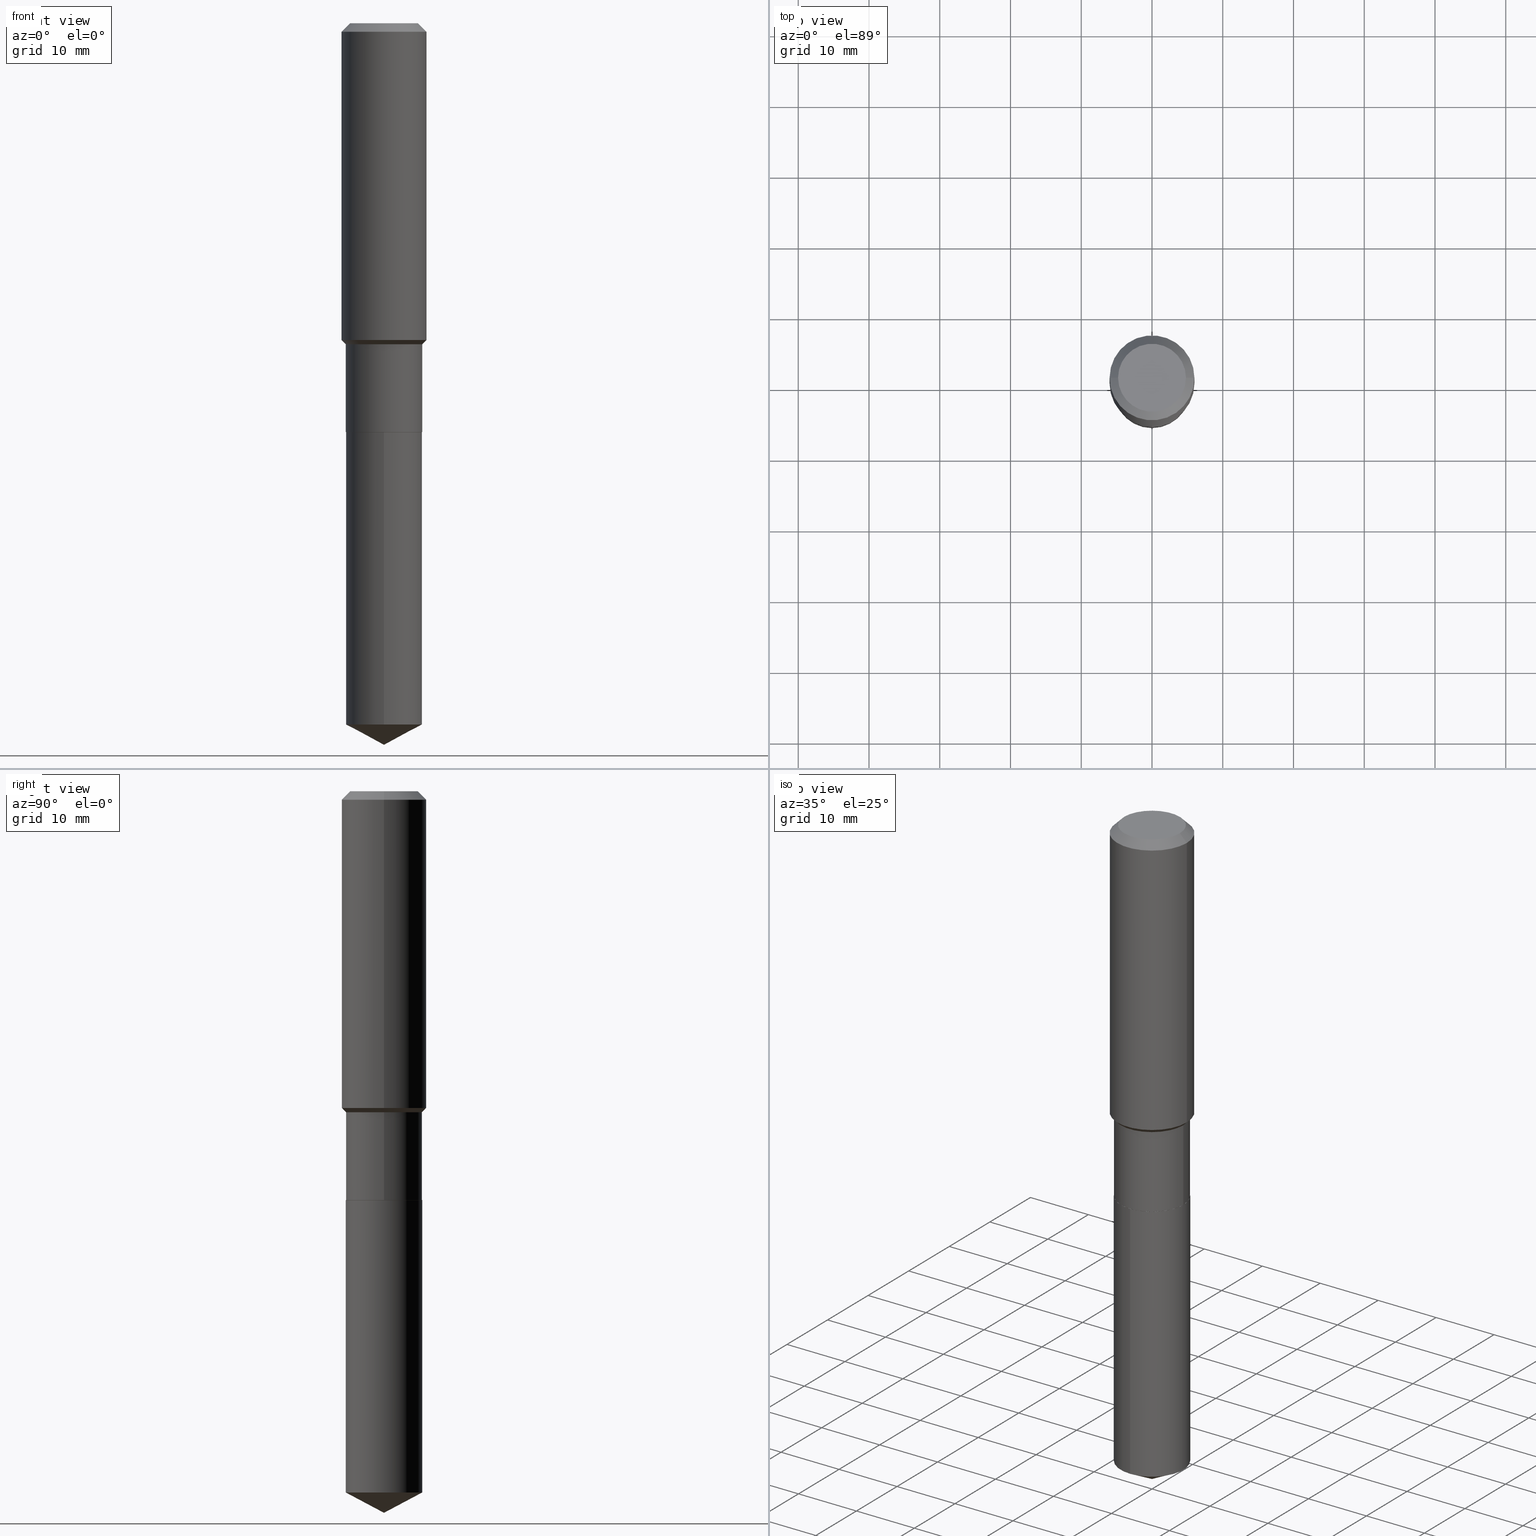
[diagram: canonical four-view strip — front | top / right | iso, engineering-drawing reading convention]
A machine part, canonical four-view strip (front | top / right | iso — engineering-drawing reading convention). The complete STEP part file that produces these views, byte-faithful:
ISO-10303-21;
HEADER;
FILE_DESCRIPTION (( 'STEP AP203' ),
    '1' );
FILE_NAME ('67678.STEP',
    '2024-04-25T09:09:51',
    ( '' ),
    ( '' ),
    'SwSTEP 2.0',
    'SolidWorks 2023',
    '' );
FILE_SCHEMA (( 'CONFIG_CONTROL_DESIGN' ));
ENDSEC;

DATA;
#1 = CARTESIAN_POINT ( 'NONE',  ( 0.000000000000000000, 0.000000000000000000, 0.000000000000000000 ) ) ;
#2 = AXIS2_PLACEMENT_3D ( 'NONE', #58, #369, #229 ) ;
#3 = EDGE_CURVE ( 'NONE', #279, #370, #10, .T. ) ;
#4 = DIRECTION ( 'NONE',  ( 1.000000000000000000, -6.982962677686266711E-15, 0.000000000000000000 ) ) ;
#5 = ORIENTED_EDGE ( 'NONE', *, *, #50, .T. ) ;
#6 = ORIENTED_EDGE ( 'NONE', *, *, #360, .T. ) ;
#7 = DIRECTION ( 'NONE',  ( -2.445557714556851823E-29, 3.491354016994499401E-15, 1.000000000000000000 ) ) ;
#8 = DIRECTION ( 'NONE',  ( -2.445468806185136597E-29, 3.491481338843145583E-15, 1.000000000000000000 ) ) ;
#9 = EDGE_CURVE ( 'NONE', #254, #114, #260, .T. ) ;
#10 = CIRCLE ( 'NONE', #368, 0.1889600000000000168 ) ;
#11 =( NAMED_UNIT ( * ) PLANE_ANGLE_UNIT ( ) SI_UNIT ( $, .RADIAN. ) );
#12 = LINE ( 'NONE', #85, #318 ) ;
#13 = CC_DESIGN_PERSON_AND_ORGANIZATION_ASSIGNMENT ( #100, #111, ( #122 ) ) ;
#14 = ORIENTED_EDGE ( 'NONE', *, *, #272, .T. ) ;
#15 = CARTESIAN_POINT ( 'NONE',  ( 9.543974473954110073E-29, -1.362585241305305094E-14, -3.902658574828770988 ) ) ;
#16 = AXIS2_PLACEMENT_3D ( 'NONE', #426, #127, #4 ) ;
#17 = CARTESIAN_POINT ( 'NONE',  ( 5.564664268474277887E-29, -7.944865786537577497E-15, -2.275500000000000078 ) ) ;
#18 = EDGE_CURVE ( 'NONE', #471, #254, #66, .T. ) ;
#19 = VERTEX_POINT ( 'NONE', #379 ) ;
#20 = EDGE_CURVE ( 'NONE', #97, #92, #176, .T. ) ;
#21 = AXIS2_PLACEMENT_3D ( 'NONE', #281, #7, #121 ) ;
#22 = CALENDAR_DATE ( 2024, 25, 4 ) ;
#23 = AXIS2_PLACEMENT_3D ( 'NONE', #316, #387, #241 ) ;
#24 = VECTOR ( 'NONE', #298, 39.37007874015748143 ) ;
#25 = PERSON_AND_ORGANIZATION ( #305, #59 ) ;
#26 = DATE_AND_TIME ( #375, #98 ) ;
#27 = CYLINDRICAL_SURFACE ( 'NONE', #261, 0.2125999999999999834 ) ;
#28 = SECURITY_CLASSIFICATION_LEVEL ( 'unclassified' ) ;
#29 = CC_DESIGN_APPROVAL ( #268, ( #183 ) ) ;
#30 = EDGE_CURVE ( 'NONE', #475, #262, #342, .T. ) ;
#31 = VECTOR ( 'NONE', #275, 39.37007874015748854 ) ;
#32 = DIRECTION ( 'NONE',  ( -2.445468806185136597E-29, 3.491481338843145583E-15, 1.000000000000000000 ) ) ;
#33 = LINE ( 'NONE', #461, #323 ) ;
#34 = EDGE_CURVE ( 'NONE', #475, #96, #302, .T. ) ;
#35 = FACE_OUTER_BOUND ( 'NONE', #450, .T. ) ;
#36 = CIRCLE ( 'NONE', #90, 0.2361999999999999933 ) ;
#37 = PLANE ( 'NONE',  #440 ) ;
#38 = EDGE_LOOP ( 'NONE', ( #83, #71, #346, #288 ) ) ;
#39 = ORIENTED_EDGE ( 'NONE', *, *, #272, .F. ) ;
#40 = CARTESIAN_POINT ( 'NONE',  ( 1.510613856226067935E-15, 0.2125999999999863554, -3.902658574828771432 ) ) ;
#41 =( LENGTH_UNIT ( ) NAMED_UNIT ( * ) SI_UNIT ( $, .METRE. ) );
#42 = CARTESIAN_POINT ( 'NONE',  ( 1.510613856226068330E-15, 0.2125999999999920453, -2.275500000000000966 ) ) ;
#43 = CC_DESIGN_PERSON_AND_ORGANIZATION_ASSIGNMENT ( #304, #441, ( #269 ) ) ;
#44 = APPROVAL_PERSON_ORGANIZATION ( #187, #332, #480 ) ;
#45 = ORIENTED_EDGE ( 'NONE', *, *, #34, .T. ) ;
#46 = AXIS2_PLACEMENT_3D ( 'NONE', #374, #430, #234 ) ;
#47 = DIRECTION ( 'NONE',  ( -2.445468806185136597E-29, 3.491481338843145583E-15, 1.000000000000000000 ) ) ;
#48 = DIRECTION ( 'NONE',  ( -1.000000000000000000, 6.982962677686265922E-15, -4.876176775795935793E-29 ) ) ;
#49 = EDGE_LOOP ( 'NONE', ( #168, #124, #367, #139 ) ) ;
#50 = EDGE_CURVE ( 'NONE', #262, #118, #80, .T. ) ;
#51 = FACE_OUTER_BOUND ( 'NONE', #165, .T. ) ;
#52 = ORIENTED_EDGE ( 'NONE', *, *, #125, .T. ) ;
#53 = LOCAL_TIME ( 5, 9, 51.00000000000000000, #185 ) ;
#54 = AXIS2_PLACEMENT_3D ( 'NONE', #237, #32, #198 ) ;
#55 = ORIENTED_EDGE ( 'NONE', *, *, #360, .F. ) ;
#56 = COORDINATED_UNIVERSAL_TIME_OFFSET ( 5, 0, .BEHIND. ) ;
#57 = LINE ( 'NONE', #186, #413 ) ;
#58 = CARTESIAN_POINT ( 'NONE',  ( 5.564664268474277887E-29, -7.944865786537577497E-15, -2.275500000000000078 ) ) ;
#59 = ORGANIZATION ( 'UNSPECIFIED', 'UNSPECIFIED', '' ) ;
#60 = DATE_AND_TIME ( #22, #270 ) ;
#61 = AXIS2_PLACEMENT_3D ( 'NONE', #123, #422, #434 ) ;
#62 = VECTOR ( 'NONE', #466, 39.37007874015748143 ) ;
#63 = ORIENTED_EDGE ( 'NONE', *, *, #416, .T. ) ;
#64 = ORIENTED_EDGE ( 'NONE', *, *, #18, .T. ) ;
#65 = COORDINATED_UNIVERSAL_TIME_OFFSET ( 5, 0, .BEHIND. ) ;
#66 = LINE ( 'NONE', #152, #31 ) ;
#67 = APPROVAL_DATE_TIME ( #266, #332 ) ;
#68 = PRODUCT_DEFINITION_SHAPE ( 'NONE', 'NONE',  #257 ) ;
#69 = ADVANCED_FACE ( 'NONE', ( #78 ), #432, .T. ) ;
#70 = FACE_OUTER_BOUND ( 'NONE', #171, .T. ) ;
#71 = ORIENTED_EDGE ( 'NONE', *, *, #424, .T. ) ;
#72 = DIRECTION ( 'NONE',  ( 0.7071067811865474617, -2.468850131082256666E-15, 0.7071067811865474617 ) ) ;
#73 = CARTESIAN_POINT ( 'NONE',  ( 4.311116958423776372E-29, -6.155132452246580252E-15, -1.762899999999999689 ) ) ;
#74 = ADVANCED_FACE ( 'NONE', ( #35 ), #116, .T. ) ;
#75 = DIRECTION ( 'NONE',  ( 2.445468806185136597E-29, -3.491481338843145583E-15, -1.000000000000000000 ) ) ;
#76 = DIRECTION ( 'NONE',  ( -2.445468806185136597E-29, 3.491481338843145583E-15, 1.000000000000000000 ) ) ;
#77 = CARTESIAN_POINT ( 'NONE',  ( 5.564664268474277887E-29, -7.944865786537577497E-15, -2.275500000000000078 ) ) ;
#78 = FACE_OUTER_BOUND ( 'NONE', #267, .T. ) ;
#79 = AXIS2_PLACEMENT_3D ( 'NONE', #91, #212, #253 ) ;
#80 = CIRCLE ( 'NONE', #414, 0.2362000000000002153 ) ;
#81 = ADVANCED_FACE ( 'NONE', ( #202 ), #425, .T. ) ;
#82 = DIRECTION ( 'NONE',  ( 1.000000000000000000, -6.982962677686267499E-15, 4.876176775795935232E-29 ) ) ;
#83 = ORIENTED_EDGE ( 'NONE', *, *, #403, .T. ) ;
#84 = EDGE_CURVE ( 'NONE', #118, #262, #160, .T. ) ;
#85 = CARTESIAN_POINT ( 'NONE',  ( 0.2121000000000000107, -9.425952170474834767E-15, -2.275500000000000078 ) ) ;
#86 = EDGE_LOOP ( 'NONE', ( #359, #45, #427, #113 ) ) ;
#87 = CARTESIAN_POINT ( 'NONE',  ( -0.1889600000000000168, 1.401969416799070942E-15, 3.855188123706346622E-18 ) ) ;
#88 = CARTESIAN_POINT ( 'NONE',  ( 5.564664268474277887E-29, -7.944865786537577497E-15, -2.275500000000000078 ) ) ;
#89 = CIRCLE ( 'NONE', #159, 0.2126000000000000112 ) ;
#90 = AXIS2_PLACEMENT_3D ( 'NONE', #226, #153, #411 ) ;
#91 = CARTESIAN_POINT ( 'NONE',  ( 4.368830022249746176E-29, -6.237531411843279954E-15, -1.786499999999999977 ) ) ;
#92 = VERTEX_POINT ( 'NONE', #170 ) ;
#93 = EDGE_CURVE ( 'NONE', #19, #462, #12, .T. ) ;
#94 = MECHANICAL_CONTEXT ( 'NONE', #222, 'mechanical' ) ;
#95 = FACE_OUTER_BOUND ( 'NONE', #284, .T. ) ;
#96 = VERTEX_POINT ( 'NONE', #489 ) ;
#97 = VERTEX_POINT ( 'NONE', #390 ) ;
#98 = LOCAL_TIME ( 5, 9, 51.00000000000000000, #230 ) ;
#99 = VECTOR ( 'NONE', #459, 39.37007874015748143 ) ;
#100 = PERSON_AND_ORGANIZATION ( #305, #59 ) ;
#101 = ADVANCED_FACE ( 'NONE', ( #167 ), #37, .F. ) ;
#102 = CARTESIAN_POINT ( 'NONE',  ( 0.2126000000000000112, -9.427697911144257060E-15, -2.275000000000000355 ) ) ;
#103 = DIRECTION ( 'NONE',  ( 1.000000000000000000, -6.982962677686266711E-15, 4.876185090822587894E-29 ) ) ;
#104 = EDGE_CURVE ( 'NONE', #462, #96, #319, .T. ) ;
#105 = ORIENTED_EDGE ( 'NONE', *, *, #487, .T. ) ;
#106 = CONICAL_SURFACE ( 'NONE', #356, 0.2125999999999999279, 0.7853981633974482790 ) ;
#107 = LOCAL_TIME ( 5, 9, 51.00000000000000000, #56 ) ;
#108 = CLOSED_SHELL ( 'NONE', ( #179, #81, #386, #311, #472, #74, #188, #282, #324, #195, #101, #321 ) ) ;
#109 = DIRECTION ( 'NONE',  ( 1.000000000000000000, -6.982962677686265133E-15, 0.000000000000000000 ) ) ;
#110 = CARTESIAN_POINT ( 'NONE',  ( 5.564664268474277887E-29, -7.944865786537577497E-15, -2.275500000000000078 ) ) ;
#111 = PERSON_AND_ORGANIZATION_ROLE ( 'design_owner' ) ;
#112 = EDGE_LOOP ( 'NONE', ( #292, #325 ) ) ;
#113 = ORIENTED_EDGE ( 'NONE', *, *, #50, .F. ) ;
#114 = VERTEX_POINT ( 'NONE', #42 ) ;
#115 = CONICAL_SURFACE ( 'NONE', #144, 0.2121000000000000107, 0.7853981633975507526 ) ;
#116 = CYLINDRICAL_SURFACE ( 'NONE', #453, 0.2125999999999999834 ) ;
#117 = CIRCLE ( 'NONE', #433, 0.2126000000000000112 ) ;
#118 = VERTEX_POINT ( 'NONE', #280 ) ;
#119 = DIRECTION ( 'NONE',  ( 1.000000000000000000, -6.982962677686268288E-15, 0.000000000000000000 ) ) ;
#120 = CARTESIAN_POINT ( 'NONE',  ( -9.427742298522546243E-47, 1.346031739168365344E-32, 3.855188123715862256E-18 ) ) ;
#121 = DIRECTION ( 'NONE',  ( -6.982962677686265922E-15, -1.000000000000000000, 3.854912502818809557E-15 ) ) ;
#122 = PRODUCT ( '67678', '67678', '', ( #94 ) ) ;
#123 = CARTESIAN_POINT ( 'NONE',  ( 9.543974473954110073E-29, -1.362585241305305094E-14, -3.902658574828770988 ) ) ;
#124 = ORIENTED_EDGE ( 'NONE', *, *, #335, .T. ) ;
#125 = EDGE_CURVE ( 'NONE', #262, #92, #208, .T. ) ;
#126 = FACE_OUTER_BOUND ( 'NONE', #388, .T. ) ;
#127 = DIRECTION ( 'NONE',  ( -2.445468806185136597E-29, 3.491481338843145583E-15, 1.000000000000000000 ) ) ;
#128 = CC_DESIGN_SECURITY_CLASSIFICATION ( #183, ( #269 ) ) ;
#129 = ORIENTED_EDGE ( 'NONE', *, *, #484, .F. ) ;
#130 = EDGE_CURVE ( 'NONE', #370, #279, #287, .T. ) ;
#131 = DIRECTION ( 'NONE',  ( -2.445468806185136597E-29, 3.491481338843145583E-15, 1.000000000000000000 ) ) ;
#132 = ORIENTED_EDGE ( 'NONE', *, *, #93, .T. ) ;
#133 = FACE_OUTER_BOUND ( 'NONE', #228, .T. ) ;
#134 = LENGTH_MEASURE_WITH_UNIT ( LENGTH_MEASURE( 0.02539999999999999897 ), #41 );
#135 = ORIENTED_EDGE ( 'NONE', *, *, #9, .T. ) ;
#136 = CARTESIAN_POINT ( 'NONE',  ( 5.564664268474277887E-29, -7.944865786537577497E-15, -2.275500000000000078 ) ) ;
#137 = CARTESIAN_POINT ( 'NONE',  ( -4.713871149261273121E-47, 6.730158695841826722E-33, 1.927594061857931128E-18 ) ) ;
#138 = EDGE_CURVE ( 'NONE', #96, #475, #277, .T. ) ;
#139 = ORIENTED_EDGE ( 'NONE', *, *, #93, .F. ) ;
#140 = CONICAL_SURFACE ( 'NONE', #201, 0.2121000000000000107, 0.7853981633975507526 ) ;
#141 = CARTESIAN_POINT ( 'NONE',  ( 0.000000000000000000, 0.000000000000000000, 0.000000000000000000 ) ) ;
#142 = DIRECTION ( 'NONE',  ( 1.000000000000000000, -6.982962677686267499E-15, 4.876176775795935232E-29 ) ) ;
#143 = VERTEX_POINT ( 'NONE', #164 ) ;
#144 = AXIS2_PLACEMENT_3D ( 'NONE', #77, #166, #273 ) ;
#145 = EDGE_CURVE ( 'NONE', #361, #254, #339, .T. ) ;
#146 = APPROVAL_STATUS ( 'not_yet_approved' ) ;
#147 = ADVANCED_FACE ( 'NONE', ( #51 ), #217, .T. ) ;
#148 = CARTESIAN_POINT ( 'NONE',  ( -1.484577865276044663E-15, -0.2126000000000079770, -2.275499999999999190 ) ) ;
#149 = CONICAL_SURFACE ( 'NONE', #344, 74.04434902938389484, 1.082104136236488490 ) ;
#150 = SHAPE_DEFINITION_REPRESENTATION ( #68, #366 ) ;
#151 = CARTESIAN_POINT ( 'NONE',  ( 0.000000000000000000, 0.000000000000000000, 0.000000000000000000 ) ) ;
#152 = CARTESIAN_POINT ( 'NONE',  ( 9.820629662403268298E-29, -1.402023032604481016E-14, -4.015699999999999825 ) ) ;
#153 = DIRECTION ( 'NONE',  ( -2.445468806185136597E-29, 3.491481338843145583E-15, 1.000000000000000000 ) ) ;
#154 = PERSON_AND_ORGANIZATION ( #305, #59 ) ;
#155 = LINE ( 'NONE', #193, #24 ) ;
#156 = CARTESIAN_POINT ( 'NONE',  ( 5.563441534071186206E-29, -7.943120045868156782E-15, -2.275000000000000355 ) ) ;
#157 = DIRECTION ( 'NONE',  ( 1.000000000000000000, -6.982962677686266711E-15, 4.876176775795935793E-29 ) ) ;
#158 = PRODUCT_RELATED_PRODUCT_CATEGORY ( 'detail', '', ( #122 ) ) ;
#159 = AXIS2_PLACEMENT_3D ( 'NONE', #156, #178, #109 ) ;
#160 = CIRCLE ( 'NONE', #220, 0.2362000000000002153 ) ;
#161 = CARTESIAN_POINT ( 'NONE',  ( 4.368830022249746176E-29, -6.237531411843279954E-15, -1.786499999999999977 ) ) ;
#162 = AXIS2_PLACEMENT_3D ( 'NONE', #238, #163, #428 ) ;
#163 = DIRECTION ( 'NONE',  ( -2.445468806185136597E-29, 3.491481338843145583E-15, 1.000000000000000000 ) ) ;
#164 = CARTESIAN_POINT ( 'NONE',  ( -1.484577865276044663E-15, -0.2126000000000079770, -2.275499999999999190 ) ) ;
#165 = EDGE_LOOP ( 'NONE', ( #464, #468, #246, #55 ) ) ;
#166 = DIRECTION ( 'NONE',  ( -2.445468806185136597E-29, 3.491481338843145583E-15, 1.000000000000000000 ) ) ;
#167 = FACE_OUTER_BOUND ( 'NONE', #391, .T. ) ;
#168 = ORIENTED_EDGE ( 'NONE', *, *, #255, .T. ) ;
#169 = FACE_OUTER_BOUND ( 'NONE', #327, .T. ) ;
#170 = CARTESIAN_POINT ( 'NONE',  ( -0.2361999999999999933, -1.481733073481408203E-15, -0.04724000000000028177 ) ) ;
#171 = EDGE_LOOP ( 'NONE', ( #105, #6 ) ) ;
#172 = AXIS2_PLACEMENT_3D ( 'NONE', #274, #384, #278 ) ;
#173 = FACE_OUTER_BOUND ( 'NONE', #49, .T. ) ;
#174 = CIRCLE ( 'NONE', #240, 0.2121000000000000107 ) ;
#175 = ORIENTED_EDGE ( 'NONE', *, *, #145, .F. ) ;
#176 = CIRCLE ( 'NONE', #16, 0.2361999999999999933 ) ;
#177 =( CONVERSION_BASED_UNIT ( 'INCH', #134 ) LENGTH_UNIT ( ) NAMED_UNIT ( #209 ) );
#178 = DIRECTION ( 'NONE',  ( -2.445468806185136597E-29, 3.491481338843145583E-15, 1.000000000000000000 ) ) ;
#179 = ADVANCED_FACE ( 'NONE', ( #173 ), #140, .T. ) ;
#180 =( NAMED_UNIT ( * ) SI_UNIT ( $, .STERADIAN. ) SOLID_ANGLE_UNIT ( ) );
#181 = APPROVAL_STATUS ( 'not_yet_approved' ) ;
#182 = ORIENTED_EDGE ( 'NONE', *, *, #420, .T. ) ;
#183 = SECURITY_CLASSIFICATION ( '', '', #28 ) ;
#184 = APPROVAL_PERSON_ORGANIZATION ( #372, #236, #190 ) ;
#185 = COORDINATED_UNIVERSAL_TIME_OFFSET ( 5, 0, .BEHIND. ) ;
#186 = CARTESIAN_POINT ( 'NONE',  ( 9.820221492346272859E-29, -1.402080976777800048E-14, -4.015699999999999825 ) ) ;
#187 = PERSON_AND_ORGANIZATION ( #305, #59 ) ;
#188 = ADVANCED_FACE ( 'NONE', ( #354 ), #248, .T. ) ;
#189 = DIRECTION ( 'NONE',  ( -0.7071067811865453523, 2.468850131082234184E-15, -0.7071067811865496822 ) ) ;
#190 = APPROVAL_ROLE ( '' ) ;
#191 = DATE_TIME_ROLE ( 'classification_date' ) ;
#192 = VECTOR ( 'NONE', #271, 39.37007874015748143 ) ;
#193 = CARTESIAN_POINT ( 'NONE',  ( -0.2125999999999999834, 1.510613856225972877E-15, -1.045765600188192871E-29 ) ) ;
#194 = ORIENTED_EDGE ( 'NONE', *, *, #487, .F. ) ;
#195 = ADVANCED_FACE ( 'NONE', ( #352 ), #286, .F. ) ;
#196 = EDGE_CURVE ( 'NONE', #254, #361, #117, .T. ) ;
#197 = CYLINDRICAL_SURFACE ( 'NONE', #309, 0.2362000000000001043 ) ;
#198 = DIRECTION ( 'NONE',  ( 1.000000000000000000, -6.982962677686268288E-15, 0.000000000000000000 ) ) ;
#199 = ORIENTED_EDGE ( 'NONE', *, *, #439, .T. ) ;
#200 = CIRCLE ( 'NONE', #162, 0.2121000000000000107 ) ;
#201 = AXIS2_PLACEMENT_3D ( 'NONE', #17, #47, #467 ) ;
#202 = FACE_OUTER_BOUND ( 'NONE', #301, .T. ) ;
#203 = ORIENTED_EDGE ( 'NONE', *, *, #476, .F. ) ;
#204 = CARTESIAN_POINT ( 'NONE',  ( 0.2362000000000001043, -1.649375784469496920E-15, 1.151752954443000508E-29 ) ) ;
#205 = DIRECTION ( 'NONE',  ( -2.438088387897960049E-29, 3.491481338843145188E-15, 1.000000000000000000 ) ) ;
#206 = DIRECTION ( 'NONE',  ( -2.445468806185136877E-29, 3.491481338843145188E-15, 1.000000000000000000 ) ) ;
#207 = DIRECTION ( 'NONE',  ( 1.000000000000000000, -6.982962677686266711E-15, 0.000000000000000000 ) ) ;
#208 = LINE ( 'NONE', #351, #99 ) ;
#209 = DIMENSIONAL_EXPONENTS ( 1.000000000000000000, 0.000000000000000000, 0.000000000000000000, 0.000000000000000000, 0.000000000000000000, 0.000000000000000000, 0.000000000000000000 ) ;
#210 = AXIS2_PLACEMENT_3D ( 'NONE', #397, #322, #358 ) ;
#211 = ADVANCED_FACE ( 'NONE', ( #95 ), #149, .T. ) ;
#212 = DIRECTION ( 'NONE',  ( -2.445468806185136597E-29, 3.491481338843145583E-15, 1.000000000000000000 ) ) ;
#213 = DIRECTION ( 'NONE',  ( -6.982962677686265922E-15, -1.000000000000000000, 3.854912502818809557E-15 ) ) ;
#214 = ORIENTED_EDGE ( 'NONE', *, *, #338, .T. ) ;
#215 = CYLINDRICAL_SURFACE ( 'NONE', #46, 0.2362000000000001043 ) ;
#216 = APPLICATION_PROTOCOL_DEFINITION ( 'international standard', 'config_control_design', 1994, #222 ) ;
#217 = CYLINDRICAL_SURFACE ( 'NONE', #210, 0.2126000000000000112 ) ;
#218 = VECTOR ( 'NONE', #189, 39.37007874015748143 ) ;
#219 = ORIENTED_EDGE ( 'NONE', *, *, #30, .T. ) ;
#220 = AXIS2_PLACEMENT_3D ( 'NONE', #345, #131, #207 ) ;
#221 = ORIENTED_EDGE ( 'NONE', *, *, #20, .F. ) ;
#222 = APPLICATION_CONTEXT ( 'configuration controlled 3d designs of mechanical parts and assemblies' ) ;
#223 = DATE_AND_TIME ( #333, #107 ) ;
#224 = ORIENTED_EDGE ( 'NONE', *, *, #34, .F. ) ;
#225 = APPROVAL_ROLE ( '' ) ;
#226 = CARTESIAN_POINT ( 'NONE',  ( 1.155239464041865506E-30, -1.649375784469511859E-16, -0.04724000000000028177 ) ) ;
#227 = VECTOR ( 'NONE', #206, 39.37007874015748143 ) ;
#228 = EDGE_LOOP ( 'NONE', ( #404, #135, #194, #460 ) ) ;
#229 = DIRECTION ( 'NONE',  ( 6.982962677686265922E-15, 1.000000000000000000, -3.491354016994499401E-15 ) ) ;
#230 = COORDINATED_UNIVERSAL_TIME_OFFSET ( 5, 0, .BEHIND. ) ;
#231 = LINE ( 'NONE', #449, #218 ) ;
#232 = CALENDAR_DATE ( 2024, 25, 4 ) ;
#233 = PLANE ( 'NONE',  #2 ) ;
#234 = DIRECTION ( 'NONE',  ( 1.000000000000000000, -6.982962677686266711E-15, 4.876176775795935793E-29 ) ) ;
#235 = DIRECTION ( 'NONE',  ( -2.445468806185136597E-29, 3.491481338843145583E-15, 1.000000000000000000 ) ) ;
#236 = APPROVAL ( #407, 'UNSPECIFIED' ) ;
#237 = CARTESIAN_POINT ( 'NONE',  ( 4.368830022249746176E-29, -6.237531411843279954E-15, -1.786499999999999977 ) ) ;
#238 = CARTESIAN_POINT ( 'NONE',  ( 5.564664268474277887E-29, -7.944865786537577497E-15, -2.275500000000000078 ) ) ;
#239 = DIRECTION ( 'NONE',  ( -2.445468806185136597E-29, 3.491481338843145583E-15, 1.000000000000000000 ) ) ;
#240 = AXIS2_PLACEMENT_3D ( 'NONE', #88, #252, #357 ) ;
#241 = DIRECTION ( 'NONE',  ( -6.982962677686265922E-15, -1.000000000000000000, 3.541896320645543908E-15 ) ) ;
#242 = VERTEX_POINT ( 'NONE', #276 ) ;
#243 = CARTESIAN_POINT ( 'NONE',  ( -0.2362000000000002153, -4.476830510381222280E-15, -1.762899999999999689 ) ) ;
#244 = CARTESIAN_POINT ( 'NONE',  ( -0.2125999999999999279, -5.579711872629745688E-15, -1.786499999999999977 ) ) ;
#245 = DIRECTION ( 'NONE',  ( -2.445468806185136597E-29, 3.491481338843145583E-15, 1.000000000000000000 ) ) ;
#246 = ORIENTED_EDGE ( 'NONE', *, *, #353, .T. ) ;
#247 = FACE_OUTER_BOUND ( 'NONE', #457, .T. ) ;
#248 = CONICAL_SURFACE ( 'NONE', #79, 0.2125999999999999279, 0.7853981633974482790 ) ;
#249 = ADVANCED_FACE ( 'NONE', ( #133 ), #341, .T. ) ;
#250 = ORIENTED_EDGE ( 'NONE', *, *, #3, .F. ) ;
#251 = CC_DESIGN_APPROVAL ( #332, ( #269 ) ) ;
#252 = DIRECTION ( 'NONE',  ( -2.445468806185136597E-29, 3.491481338843145583E-15, 1.000000000000000000 ) ) ;
#253 = DIRECTION ( 'NONE',  ( 1.000000000000000000, -6.982962677686268288E-15, 0.000000000000000000 ) ) ;
#254 = VERTEX_POINT ( 'NONE', #40 ) ;
#255 = EDGE_CURVE ( 'NONE', #19, #242, #200, .T. ) ;
#256 = ORIENTED_EDGE ( 'NONE', *, *, #125, .F. ) ;
#257 = PRODUCT_DEFINITION ( 'UNKNOWN', '', #269, #415 ) ;
#258 = ORIENTED_EDGE ( 'NONE', *, *, #20, .T. ) ;
#259 = PERSON_AND_ORGANIZATION_ROLE ( 'creator' ) ;
#260 = LINE ( 'NONE', #446, #483 ) ;
#261 = AXIS2_PLACEMENT_3D ( 'NONE', #151, #410, #142 ) ;
#262 = VERTEX_POINT ( 'NONE', #243 ) ;
#263 = PERSON_AND_ORGANIZATION ( #305, #59 ) ;
#264 = DIRECTION ( 'NONE',  ( -2.445557714556851823E-29, 3.491354016994499401E-15, 1.000000000000000000 ) ) ;
#265 = DIRECTION ( 'NONE',  ( -2.445557714556851823E-29, 3.491354016994499401E-15, 1.000000000000000000 ) ) ;
#266 = DATE_AND_TIME ( #232, #455 ) ;
#267 = EDGE_LOOP ( 'NONE', ( #398, #64, #175 ) ) ;
#268 = APPROVAL ( #181, 'UNSPECIFIED' ) ;
#269 = PRODUCT_DEFINITION_FORMATION_WITH_SPECIFIED_SOURCE ( 'ANY', '', #122, .NOT_KNOWN. ) ;
#270 = LOCAL_TIME ( 5, 9, 51.00000000000000000, #405 ) ;
#271 = DIRECTION ( 'NONE',  ( -2.445468806185136877E-29, 3.491481338843145188E-15, 1.000000000000000000 ) ) ;
#272 = EDGE_CURVE ( 'NONE', #118, #97, #392, .T. ) ;
#273 = DIRECTION ( 'NONE',  ( 1.000000000000000000, -6.982962677686261977E-15, 0.000000000000000000 ) ) ;
#274 = CARTESIAN_POINT ( 'NONE',  ( 1.155239464041865506E-30, -1.649375784469511859E-16, -0.04724000000000028177 ) ) ;
#275 = DIRECTION ( 'NONE',  ( 6.273719981627772387E-15, 0.8829475928589306521, 0.4694715627858840334 ) ) ;
#276 = CARTESIAN_POINT ( 'NONE',  ( -0.2121000000000000107, -6.435155416816294120E-15, -2.275500000000000078 ) ) ;
#277 = CIRCLE ( 'NONE', #54, 0.2125999999999999279 ) ;
#278 = DIRECTION ( 'NONE',  ( -1.000000000000000000, 6.982962677686266711E-15, 0.000000000000000000 ) ) ;
#279 = VERTEX_POINT ( 'NONE', #87 ) ;
#280 = CARTESIAN_POINT ( 'NONE',  ( 0.2362000000000002153, -7.804508236716077566E-15, -1.762899999999999689 ) ) ;
#281 = CARTESIAN_POINT ( 'NONE',  ( 5.564664268474277887E-29, -7.944865786537577497E-15, -2.275500000000000078 ) ) ;
#282 = ADVANCED_FACE ( 'NONE', ( #247 ), #197, .T. ) ;
#283 = LINE ( 'NONE', #395, #62 ) ;
#284 = EDGE_LOOP ( 'NONE', ( #435, #182, #299 ) ) ;
#285 = AXIS2_PLACEMENT_3D ( 'NONE', #136, #469, #213 ) ;
#286 = PLANE ( 'NONE',  #330 ) ;
#287 = CIRCLE ( 'NONE', #308, 0.1889600000000000168 ) ;
#288 = ORIENTED_EDGE ( 'NONE', *, *, #104, .F. ) ;
#289 = VECTOR ( 'NONE', #72, 39.37007874015748854 ) ;
#290 = DIRECTION ( 'NONE',  ( 0.000000000000000000, 0.000000000000000000, 1.000000000000000000 ) ) ;
#291 = DIRECTION ( 'NONE',  ( -2.445557714556851823E-29, 3.491354016994499401E-15, 1.000000000000000000 ) ) ;
#292 = ORIENTED_EDGE ( 'NONE', *, *, #3, .T. ) ;
#293 = EDGE_LOOP ( 'NONE', ( #129, #250, #63, #214 ) ) ;
#294 = AXIS2_PLACEMENT_3D ( 'NONE', #161, #245, #456 ) ;
#295 = CC_DESIGN_PERSON_AND_ORGANIZATION_ASSIGNMENT ( #402, #329, ( #183 ) ) ;
#296 = CARTESIAN_POINT ( 'NONE',  ( 5.563441534071186206E-29, -7.943120045868156782E-15, -2.275000000000000355 ) ) ;
#297 = DIRECTION ( 'NONE',  ( -0.7071067811866199593, 7.493145998870616062E-15, 0.7071067811864750752 ) ) ;
#298 = DIRECTION ( 'NONE',  ( -2.445468806185136877E-29, 3.491481338843145188E-15, 1.000000000000000000 ) ) ;
#299 = ORIENTED_EDGE ( 'NONE', *, *, #196, .F. ) ;
#300 = CARTESIAN_POINT ( 'NONE',  ( 0.2125999999999999279, -7.722109277119379442E-15, -1.786499999999999977 ) ) ;
#301 = EDGE_LOOP ( 'NONE', ( #482, #313, #258, #400 ) ) ;
#302 = CIRCLE ( 'NONE', #294, 0.2125999999999999279 ) ;
#303 = CC_DESIGN_PERSON_AND_ORGANIZATION_ASSIGNMENT ( #263, #259, ( #257 ) ) ;
#304 = PERSON_AND_ORGANIZATION ( #305, #59 ) ;
#305 = PERSON ( 'UNSPECIFIED', 'UNSPECIFIED', 'UNSPECIFIED', ('UNSPECIFIED'), ('UNSPECIFIED'), ('UNSPECIFIED') ) ;
#306 = CARTESIAN_POINT ( 'NONE',  ( 0.000000000000000000, 0.000000000000000000, 0.000000000000000000 ) ) ;
#307 = CARTESIAN_POINT ( 'NONE',  ( 4.368830022249746176E-29, -6.237531411843279954E-15, -1.786499999999999977 ) ) ;
#308 = AXIS2_PLACEMENT_3D ( 'NONE', #120, #76, #417 ) ;
#309 = AXIS2_PLACEMENT_3D ( 'NONE', #1, #488, #157 ) ;
#310 = MANIFOLD_SOLID_BREP ( 'Body-Move/Copy2[2]', #108 ) ;
#311 = ADVANCED_FACE ( 'NONE', ( #126 ), #106, .T. ) ;
#312 = CARTESIAN_POINT ( 'NONE',  ( -0.2125999999999999279, -4.726917555617306879E-15, -1.786499999999999977 ) ) ;
#313 = ORIENTED_EDGE ( 'NONE', *, *, #484, .T. ) ;
#314 = DIRECTION ( 'NONE',  ( 1.000000000000000000, -6.982962677686266711E-15, 0.000000000000000000 ) ) ;
#315 = FACE_OUTER_BOUND ( 'NONE', #293, .T. ) ;
#316 = CARTESIAN_POINT ( 'NONE',  ( -8.646137598235671268E-28, 1.234343625119271519E-13, 35.35437874015748605 ) ) ;
#317 = UNCERTAINTY_MEASURE_WITH_UNIT (LENGTH_MEASURE( 1.000000000000000082E-05 ), #177, 'distance_accuracy_value', 'NONE');
#318 = VECTOR ( 'NONE', #452, 39.37007874015748143 ) ;
#319 = LINE ( 'NONE', #463, #192 ) ;
#320 = ORIENTED_EDGE ( 'NONE', *, *, #138, .T. ) ;
#321 = ADVANCED_FACE ( 'NONE', ( #421 ), #115, .T. ) ;
#322 = DIRECTION ( 'NONE',  ( -2.445557714556851823E-29, 3.491354016994499401E-15, 1.000000000000000000 ) ) ;
#323 = VECTOR ( 'NONE', #297, 39.37007874015748143 ) ;
#324 = ADVANCED_FACE ( 'NONE', ( #315 ), #396, .T. ) ;
#325 = ORIENTED_EDGE ( 'NONE', *, *, #130, .T. ) ;
#326 = CARTESIAN_POINT ( 'NONE',  ( 0.1889600000000000168, -1.540873453589747738E-15, 3.855188123725863225E-18 ) ) ;
#327 = EDGE_LOOP ( 'NONE', ( #412, #52, #221, #39 ) ) ;
#328 = ORIENTED_EDGE ( 'NONE', *, *, #84, .F. ) ;
#329 = PERSON_AND_ORGANIZATION_ROLE ( 'classification_officer' ) ;
#330 = AXIS2_PLACEMENT_3D ( 'NONE', #137, #399, #48 ) ;
#331 = AXIS2_PLACEMENT_3D ( 'NONE', #141, #290, #436 ) ;
#332 = APPROVAL ( #146, 'UNSPECIFIED' ) ;
#333 = CALENDAR_DATE ( 2024, 25, 4 ) ;
#334 = DIRECTION ( 'NONE',  ( -6.165590087286841551E-15, -0.8829475928589272105, 0.4694715627858901952 ) ) ;
#335 = EDGE_CURVE ( 'NONE', #242, #349, #33, .T. ) ;
#336 = LINE ( 'NONE', #300, #289 ) ;
#337 = CALENDAR_DATE ( 2024, 25, 4 ) ;
#338 = EDGE_CURVE ( 'NONE', #92, #97, #36, .T. ) ;
#339 = CIRCLE ( 'NONE', #61, 0.2126000000000000112 ) ;
#340 = DATE_AND_TIME ( #337, #53 ) ;
#341 = CYLINDRICAL_SURFACE ( 'NONE', #21, 0.2126000000000000112 ) ;
#342 = LINE ( 'NONE', #312, #490 ) ;
#343 = CARTESIAN_POINT ( 'NONE',  ( -1.484577865276004825E-15, -0.2126000000000136114, -3.902658574828770099 ) ) ;
#344 = AXIS2_PLACEMENT_3D ( 'NONE', #458, #389, #465 ) ;
#345 = CARTESIAN_POINT ( 'NONE',  ( 4.311116958423776372E-29, -6.155132452246580252E-15, -1.762899999999999689 ) ) ;
#346 = ORIENTED_EDGE ( 'NONE', *, *, #138, .F. ) ;
#347 = DIRECTION ( 'NONE',  ( 1.000000000000000000, -6.982962677686265922E-15, 4.876176775795935793E-29 ) ) ;
#348 = ADVANCED_FACE ( 'NONE', ( #70 ), #233, .F. ) ;
#349 = VERTEX_POINT ( 'NONE', #373 ) ;
#350 = CLOSED_SHELL ( 'NONE', ( #249, #69, #211, #147, #348 ) ) ;
#351 = CARTESIAN_POINT ( 'NONE',  ( -0.2362000000000001043, 1.678301941865357380E-15, -1.161852468318209317E-29 ) ) ;
#352 = FACE_OUTER_BOUND ( 'NONE', #112, .T. ) ;
#353 = EDGE_CURVE ( 'NONE', #361, #143, #479, .T. ) ;
#354 = FACE_OUTER_BOUND ( 'NONE', #86, .T. ) ;
#355 = ORIENTED_EDGE ( 'NONE', *, *, #338, .F. ) ;
#356 = AXIS2_PLACEMENT_3D ( 'NONE', #307, #454, #119 ) ;
#357 = DIRECTION ( 'NONE',  ( 1.000000000000000000, -6.982962677686261977E-15, 0.000000000000000000 ) ) ;
#358 = DIRECTION ( 'NONE',  ( -6.982962677686265922E-15, -1.000000000000000000, 3.854912502818809557E-15 ) ) ;
#359 = ORIENTED_EDGE ( 'NONE', *, *, #30, .F. ) ;
#360 = EDGE_CURVE ( 'NONE', #114, #143, #423, .T. ) ;
#361 = VERTEX_POINT ( 'NONE', #343 ) ;
#362 = ORIENTED_EDGE ( 'NONE', *, *, #104, .T. ) ;
#363 = CC_DESIGN_DATE_AND_TIME_ASSIGNMENT ( #26, #191, ( #183 ) ) ;
#364 = APPROVAL_DATE_TIME ( #340, #236 ) ;
#365 = AXIS2_PLACEMENT_3D ( 'NONE', #418, #75, #381 ) ;
#366 = ADVANCED_BREP_SHAPE_REPRESENTATION ( '67678', ( #470, #310, #331 ), #393 ) ;
#367 = ORIENTED_EDGE ( 'NONE', *, *, #403, .F. ) ;
#368 = AXIS2_PLACEMENT_3D ( 'NONE', #443, #486, #103 ) ;
#369 = DIRECTION ( 'NONE',  ( 2.445557714556851262E-29, -3.491354016994499401E-15, -1.000000000000000000 ) ) ;
#370 = VERTEX_POINT ( 'NONE', #326 ) ;
#371 = CIRCLE ( 'NONE', #285, 0.2126000000000000112 ) ;
#372 = PERSON_AND_ORGANIZATION ( #305, #59 ) ;
#373 = CARTESIAN_POINT ( 'NONE',  ( -0.2126000000000000112, -5.579711872629745688E-15, -2.275000000000000355 ) ) ;
#374 = CARTESIAN_POINT ( 'NONE',  ( 0.000000000000000000, 0.000000000000000000, 0.000000000000000000 ) ) ;
#375 = CALENDAR_DATE ( 2024, 25, 4 ) ;
#376 = FACE_OUTER_BOUND ( 'NONE', #38, .T. ) ;
#377 = PERSON_AND_ORGANIZATION_ROLE ( 'creator' ) ;
#378 = APPLICATION_CONTEXT ( 'configuration controlled 3d designs of mechanical parts and assemblies' ) ;
#379 = CARTESIAN_POINT ( 'NONE',  ( 0.2121000000000000107, -9.425952170474834767E-15, -2.275500000000000078 ) ) ;
#380 = ORIENTED_EDGE ( 'NONE', *, *, #255, .F. ) ;
#381 = DIRECTION ( 'NONE',  ( -1.000000000000000000, 6.982962677686266711E-15, 0.000000000000000000 ) ) ;
#382 = DIRECTION ( 'NONE',  ( -0.7071067811865474617, 7.493145998870352582E-15, 0.7071067811865474617 ) ) ;
#383 = AXIS2_PLACEMENT_3D ( 'NONE', #296, #235, #481 ) ;
#384 = DIRECTION ( 'NONE',  ( 2.445468806185136597E-29, -3.491481338843145583E-15, -1.000000000000000000 ) ) ;
#385 = ORIENTED_EDGE ( 'NONE', *, *, #439, .F. ) ;
#386 = ADVANCED_FACE ( 'NONE', ( #169 ), #215, .T. ) ;
#387 = DIRECTION ( 'NONE',  ( -2.445557714556851823E-29, 3.491354016994499401E-15, 1.000000000000000000 ) ) ;
#388 = EDGE_LOOP ( 'NONE', ( #320, #219, #328, #448 ) ) ;
#389 = DIRECTION ( 'NONE',  ( -2.445557714556851823E-29, 3.491354016994499401E-15, 1.000000000000000000 ) ) ;
#390 = CARTESIAN_POINT ( 'NONE',  ( 0.2361999999999999933, -1.814313362916447440E-15, -0.04724000000000028177 ) ) ;
#391 = EDGE_LOOP ( 'NONE', ( #380, #203 ) ) ;
#392 = LINE ( 'NONE', #204, #227 ) ;
#393 =( GEOMETRIC_REPRESENTATION_CONTEXT ( 3 ) GLOBAL_UNCERTAINTY_ASSIGNED_CONTEXT ( ( #317 ) ) GLOBAL_UNIT_ASSIGNED_CONTEXT ( ( #177, #11, #180 ) ) REPRESENTATION_CONTEXT ( 'NONE', 'WORKASPACE' ) );
#394 = APPROVAL_PERSON_ORGANIZATION ( #154, #268, #225 ) ;
#395 = CARTESIAN_POINT ( 'NONE',  ( 0.2361999999999999933, -1.785387205520586782E-15, -0.04724000000000028177 ) ) ;
#396 = CONICAL_SURFACE ( 'NONE', #365, 0.2361999999999999933, 0.7853981633974452814 ) ;
#397 = CARTESIAN_POINT ( 'NONE',  ( 5.564664268474277887E-29, -7.944865786537577497E-15, -2.275500000000000078 ) ) ;
#398 = ORIENTED_EDGE ( 'NONE', *, *, #420, .F. ) ;
#399 = DIRECTION ( 'NONE',  ( 2.438088387897960049E-29, -3.491481338843145188E-15, -1.000000000000000000 ) ) ;
#400 = ORIENTED_EDGE ( 'NONE', *, *, #416, .F. ) ;
#401 = EDGE_LOOP ( 'NONE', ( #473, #477, #132, #385 ) ) ;
#402 = PERSON_AND_ORGANIZATION ( #305, #59 ) ;
#403 = EDGE_CURVE ( 'NONE', #462, #349, #89, .T. ) ;
#404 = ORIENTED_EDGE ( 'NONE', *, *, #145, .T. ) ;
#405 = COORDINATED_UNIVERSAL_TIME_OFFSET ( 5, 0, .BEHIND. ) ;
#406 = CIRCLE ( 'NONE', #383, 0.2126000000000000112 ) ;
#407 = APPROVAL_STATUS ( 'not_yet_approved' ) ;
#408 = DIRECTION ( 'NONE',  ( -6.982962677686265922E-15, -1.000000000000000000, 3.854912502818809557E-15 ) ) ;
#409 = APPLICATION_PROTOCOL_DEFINITION ( 'international standard', 'config_control_design', 1994, #378 ) ;
#410 = DIRECTION ( 'NONE',  ( -2.445468806185136597E-29, 3.491481338843145583E-15, 1.000000000000000000 ) ) ;
#411 = DIRECTION ( 'NONE',  ( 1.000000000000000000, -6.982962677686266711E-15, 0.000000000000000000 ) ) ;
#412 = ORIENTED_EDGE ( 'NONE', *, *, #84, .T. ) ;
#413 = VECTOR ( 'NONE', #334, 39.37007874015748854 ) ;
#414 = AXIS2_PLACEMENT_3D ( 'NONE', #73, #239, #314 ) ;
#415 = DESIGN_CONTEXT ( 'detailed design', #378, 'design' ) ;
#416 = EDGE_CURVE ( 'NONE', #279, #92, #231, .T. ) ;
#417 = DIRECTION ( 'NONE',  ( 1.000000000000000000, -6.982962677686266711E-15, 4.876185090822587894E-29 ) ) ;
#418 = CARTESIAN_POINT ( 'NONE',  ( 1.155239464041865506E-30, -1.649375784469511859E-16, -0.04724000000000028177 ) ) ;
#419 = CARTESIAN_POINT ( 'NONE',  ( 5.564664268474277887E-29, -7.944865786537577497E-15, -2.275500000000000078 ) ) ;
#420 = EDGE_CURVE ( 'NONE', #471, #361, #57, .T. ) ;
#421 = FACE_OUTER_BOUND ( 'NONE', #401, .T. ) ;
#422 = DIRECTION ( 'NONE',  ( -2.445557714556851823E-29, 3.491354016994499401E-15, 1.000000000000000000 ) ) ;
#423 = CIRCLE ( 'NONE', #444, 0.2126000000000000112 ) ;
#424 = EDGE_CURVE ( 'NONE', #349, #475, #155, .T. ) ;
#425 = CONICAL_SURFACE ( 'NONE', #172, 0.2361999999999999933, 0.7853981633974452814 ) ;
#426 = CARTESIAN_POINT ( 'NONE',  ( 1.155239464041865506E-30, -1.649375784469511859E-16, -0.04724000000000028177 ) ) ;
#427 = ORIENTED_EDGE ( 'NONE', *, *, #429, .T. ) ;
#428 = DIRECTION ( 'NONE',  ( 1.000000000000000000, -6.982962677686261977E-15, 0.000000000000000000 ) ) ;
#429 = EDGE_CURVE ( 'NONE', #96, #118, #336, .T. ) ;
#430 = DIRECTION ( 'NONE',  ( -2.445468806185136597E-29, 3.491481338843145583E-15, 1.000000000000000000 ) ) ;
#431 = VECTOR ( 'NONE', #447, 39.37007874015748143 ) ;
#432 = CONICAL_SURFACE ( 'NONE', #23, 74.04434902938389484, 1.082104136236488490 ) ;
#433 = AXIS2_PLACEMENT_3D ( 'NONE', #15, #291, #437 ) ;
#434 = DIRECTION ( 'NONE',  ( -6.982962677686265922E-15, -1.000000000000000000, 2.569941668545873170E-15 ) ) ;
#435 = ORIENTED_EDGE ( 'NONE', *, *, #18, .F. ) ;
#436 = DIRECTION ( 'NONE',  ( 1.000000000000000000, 0.000000000000000000, 0.000000000000000000 ) ) ;
#437 = DIRECTION ( 'NONE',  ( -6.982962677686265922E-15, -1.000000000000000000, 2.569941668545873170E-15 ) ) ;
#438 = ORIENTED_EDGE ( 'NONE', *, *, #424, .F. ) ;
#439 = EDGE_CURVE ( 'NONE', #349, #462, #406, .T. ) ;
#440 = AXIS2_PLACEMENT_3D ( 'NONE', #419, #205, #347 ) ;
#441 = PERSON_AND_ORGANIZATION_ROLE ( 'design_supplier' ) ;
#442 = CC_DESIGN_PERSON_AND_ORGANIZATION_ASSIGNMENT ( #25, #377, ( #269 ) ) ;
#443 = CARTESIAN_POINT ( 'NONE',  ( -9.427742298522546243E-47, 1.346031739168365344E-32, 3.855188123715862256E-18 ) ) ;
#444 = AXIS2_PLACEMENT_3D ( 'NONE', #110, #265, #408 ) ;
#445 = CARTESIAN_POINT ( 'NONE',  ( 9.820626114345949110E-29, -1.402023032604481016E-14, -4.015699999999999825 ) ) ;
#446 = CARTESIAN_POINT ( 'NONE',  ( 1.510613856226028295E-15, 0.2125999999999920453, -2.275500000000000966 ) ) ;
#447 = DIRECTION ( 'NONE',  ( -2.445557714556851823E-29, 3.491354016994499401E-15, 1.000000000000000000 ) ) ;
#448 = ORIENTED_EDGE ( 'NONE', *, *, #429, .F. ) ;
#449 = CARTESIAN_POINT ( 'NONE',  ( -0.2361999999999999933, 1.484438206022545019E-15, -0.04724000000000028177 ) ) ;
#450 = EDGE_LOOP ( 'NONE', ( #438, #199, #362, #224 ) ) ;
#451 = CC_DESIGN_DATE_AND_TIME_ASSIGNMENT ( #60, #485, ( #257 ) ) ;
#452 = DIRECTION ( 'NONE',  ( 0.7071067811866199593, -2.468850131083015945E-15, 0.7071067811864750752 ) ) ;
#453 = AXIS2_PLACEMENT_3D ( 'NONE', #306, #8, #82 ) ;
#454 = DIRECTION ( 'NONE',  ( -2.445468806185136597E-29, 3.491481338843145583E-15, 1.000000000000000000 ) ) ;
#455 = LOCAL_TIME ( 5, 9, 51.00000000000000000, #65 ) ;
#456 = DIRECTION ( 'NONE',  ( 1.000000000000000000, -6.982962677686268288E-15, 0.000000000000000000 ) ) ;
#457 = EDGE_LOOP ( 'NONE', ( #256, #5, #14, #355 ) ) ;
#458 = CARTESIAN_POINT ( 'NONE',  ( -8.646137598235671268E-28, 1.234343625119271519E-13, 35.35437874015748605 ) ) ;
#459 = DIRECTION ( 'NONE',  ( -2.445468806185136877E-29, 3.491481338843145188E-15, 1.000000000000000000 ) ) ;
#460 = ORIENTED_EDGE ( 'NONE', *, *, #353, .F. ) ;
#461 = CARTESIAN_POINT ( 'NONE',  ( -0.2121000000000000107, -6.437804643990405321E-15, -2.275500000000000078 ) ) ;
#462 = VERTEX_POINT ( 'NONE', #102 ) ;
#463 = CARTESIAN_POINT ( 'NONE',  ( 0.2125999999999999834, -1.484577865276100277E-15, 1.036675182534215730E-29 ) ) ;
#464 = ORIENTED_EDGE ( 'NONE', *, *, #9, .F. ) ;
#465 = DIRECTION ( 'NONE',  ( -6.982962677686265922E-15, -1.000000000000000000, 3.541896320645543908E-15 ) ) ;
#466 = DIRECTION ( 'NONE',  ( 0.7071067811865453523, -7.319954787623248157E-15, -0.7071067811865496822 ) ) ;
#467 = DIRECTION ( 'NONE',  ( 1.000000000000000000, -6.982962677686261977E-15, 0.000000000000000000 ) ) ;
#468 = ORIENTED_EDGE ( 'NONE', *, *, #196, .T. ) ;
#469 = DIRECTION ( 'NONE',  ( -2.445557714556851823E-29, 3.491354016994499401E-15, 1.000000000000000000 ) ) ;
#470 = MANIFOLD_SOLID_BREP ( 'Body-Move/Copy2[1]', #350 ) ;
#471 = VERTEX_POINT ( 'NONE', #445 ) ;
#472 = ADVANCED_FACE ( 'NONE', ( #376 ), #27, .T. ) ;
#473 = ORIENTED_EDGE ( 'NONE', *, *, #335, .F. ) ;
#474 = CC_DESIGN_APPROVAL ( #236, ( #257 ) ) ;
#475 = VERTEX_POINT ( 'NONE', #244 ) ;
#476 = EDGE_CURVE ( 'NONE', #242, #19, #174, .T. ) ;
#477 = ORIENTED_EDGE ( 'NONE', *, *, #476, .T. ) ;
#478 = APPROVAL_DATE_TIME ( #223, #268 ) ;
#479 = LINE ( 'NONE', #148, #431 ) ;
#480 = APPROVAL_ROLE ( '' ) ;
#481 = DIRECTION ( 'NONE',  ( 1.000000000000000000, -6.982962677686265133E-15, 0.000000000000000000 ) ) ;
#482 = ORIENTED_EDGE ( 'NONE', *, *, #130, .F. ) ;
#483 = VECTOR ( 'NONE', #264, 39.37007874015748143 ) ;
#484 = EDGE_CURVE ( 'NONE', #370, #97, #283, .T. ) ;
#485 = DATE_TIME_ROLE ( 'creation_date' ) ;
#486 = DIRECTION ( 'NONE',  ( -2.445468806185136597E-29, 3.491481338843145583E-15, 1.000000000000000000 ) ) ;
#487 = EDGE_CURVE ( 'NONE', #143, #114, #371, .T. ) ;
#488 = DIRECTION ( 'NONE',  ( -2.445468806185136597E-29, 3.491481338843145583E-15, 1.000000000000000000 ) ) ;
#489 = CARTESIAN_POINT ( 'NONE',  ( 0.2125999999999999279, -7.722109277119379442E-15, -1.786499999999999977 ) ) ;
#490 = VECTOR ( 'NONE', #382, 39.37007874015748854 ) ;
ENDSEC;
END-ISO-10303-21;
